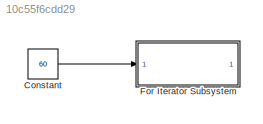
MODEL slx_10c55f6cdd29
KIND model
BLOCK [Constant] Constant
  Value = 60
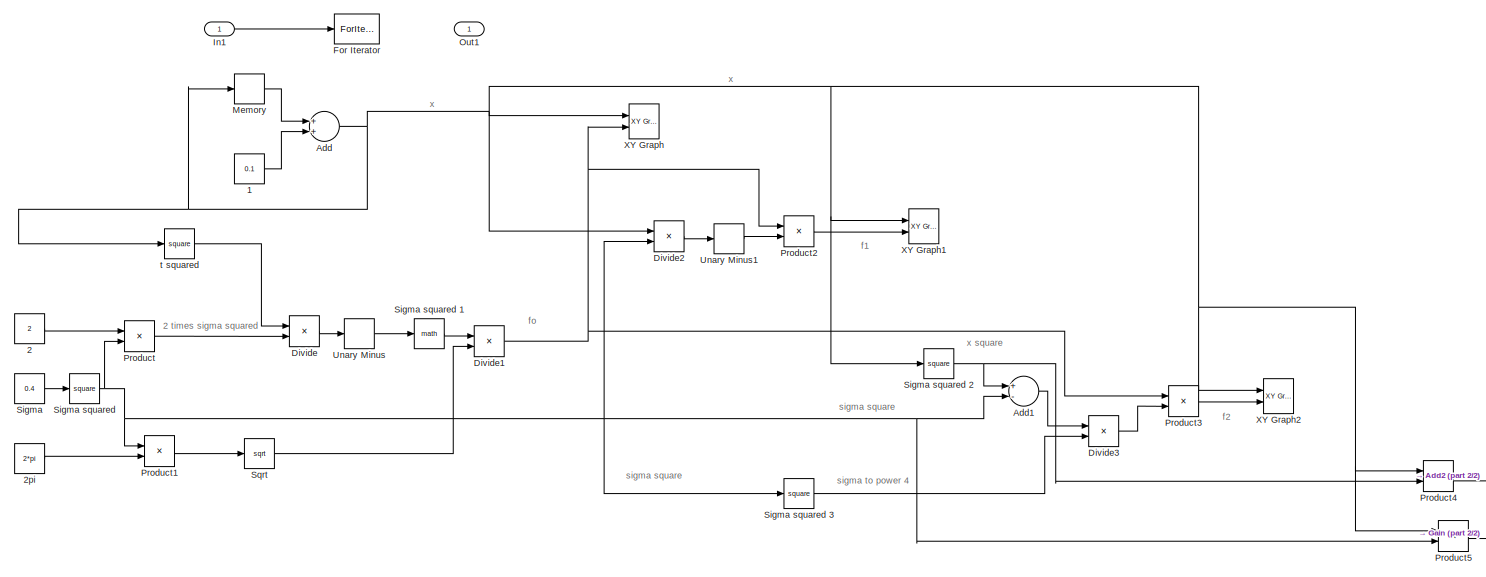
[diagram: For Iterator Subsystem - part 1/2, most of the canvas]
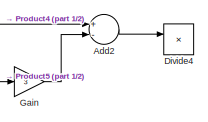
[diagram: For Iterator Subsystem - part 2/2, bottom right region]
BLOCK [SubSystem] For Iterator Subsystem
  FunctionWithSeparateData = off
  MaskHideContents = off
  MinAlgLoopOccurrences = off
  Opaque = off
  Ports = [1, 1]
  PropExecContextOutsideSubsystem = off
  RTWSystemCode = Auto
  RequestExecContextInheritance = off
  TreatAsAtomicUnit = on
BLOCK [Constant] For Iterator Subsystem/1
  Value = 0.1
BLOCK [Constant] For Iterator Subsystem/2
  Value = 2
BLOCK [Constant] For Iterator Subsystem/2pi 
  Value = 2*pi
BLOCK [Sum] For Iterator Subsystem/Add
  InputSameDT = off
  OutDataTypeStr = Inherit: Inherit via internal rule
  Ports = [2, 1]
  SaturateOnIntegerOverflow = off
BLOCK [Sum] For Iterator Subsystem/Add1
  InputSameDT = off
  Inputs = +-
  OutDataTypeStr = Inherit: Inherit via internal rule
  Ports = [2, 1]
  SaturateOnIntegerOverflow = off
BLOCK [Sum] For Iterator Subsystem/Add2
  InputSameDT = off
  Inputs = +-
  OutDataTypeStr = Inherit: Inherit via internal rule
  Ports = [2, 1]
  SaturateOnIntegerOverflow = off
BLOCK [Product] For Iterator Subsystem/Divide
  InputSameDT = off
  Inputs = */
  OutDataTypeStr = Inherit: Inherit via internal rule
  Ports = [2, 1]
  RndMeth = Floor
  SaturateOnIntegerOverflow = off
BLOCK [Product] For Iterator Subsystem/Divide1
  InputSameDT = off
  Inputs = */
  OutDataTypeStr = Inherit: Inherit via internal rule
  Ports = [2, 1]
  RndMeth = Floor
  SaturateOnIntegerOverflow = off
BLOCK [Product] For Iterator Subsystem/Divide2
  InputSameDT = off
  Inputs = */
  OutDataTypeStr = Inherit: Inherit via internal rule
  Ports = [2, 1]
  RndMeth = Floor
  SaturateOnIntegerOverflow = off
BLOCK [Product] For Iterator Subsystem/Divide3
  InputSameDT = off
  Inputs = */
  OutDataTypeStr = Inherit: Inherit via internal rule
  Ports = [2, 1]
  RndMeth = Floor
  SaturateOnIntegerOverflow = off
BLOCK [Product] For Iterator Subsystem/Divide4
  InputSameDT = off
  Inputs = */
  OutDataTypeStr = Inherit: Inherit via internal rule
  Ports = [2, 1]
  RndMeth = Floor
  SaturateOnIntegerOverflow = off
BLOCK [ForIterator] For Iterator Subsystem/For Iterator
  IterationSource = external
  Ports = [1, 1]
  ResetStates = reset
BLOCK [Gain] For Iterator Subsystem/Gain
  Gain = 3
  OutDataTypeStr = Inherit: Inherit via internal rule
  ParamDataTypeStr = Inherit: Inherit via internal rule
  SaturateOnIntegerOverflow = off
BLOCK [Inport] For Iterator Subsystem/In1
  IconDisplay = Port number
BLOCK [Memory] For Iterator Subsystem/Memory
  InheritSampleTime = on
  X0 = -3.1
BLOCK [Outport] For Iterator Subsystem/Out1
  IconDisplay = Port number
BLOCK [Product] For Iterator Subsystem/Product
  InputSameDT = off
  OutDataTypeStr = Inherit: Inherit via internal rule
  Ports = [2, 1]
  SaturateOnIntegerOverflow = off
BLOCK [Product] For Iterator Subsystem/Product1
  InputSameDT = off
  OutDataTypeStr = Inherit: Inherit via internal rule
  Ports = [2, 1]
  SaturateOnIntegerOverflow = off
BLOCK [Product] For Iterator Subsystem/Product2
  InputSameDT = off
  OutDataTypeStr = Inherit: Inherit via internal rule
  Ports = [2, 1]
  SaturateOnIntegerOverflow = off
BLOCK [Product] For Iterator Subsystem/Product3
  InputSameDT = off
  OutDataTypeStr = Inherit: Inherit via internal rule
  Ports = [2, 1]
  SaturateOnIntegerOverflow = off
BLOCK [Product] For Iterator Subsystem/Product4
  InputSameDT = off
  OutDataTypeStr = Inherit: Inherit via internal rule
  Ports = [2, 1]
  SaturateOnIntegerOverflow = off
BLOCK [Product] For Iterator Subsystem/Product5
  InputSameDT = off
  OutDataTypeStr = Inherit: Inherit via internal rule
  Ports = [2, 1]
  SaturateOnIntegerOverflow = off
BLOCK [Constant] For Iterator Subsystem/Sigma 
  Value = 0.4
BLOCK [Math] For Iterator Subsystem/Sigma squared 
  Operator = square
  Ports = [1, 1]
BLOCK [Math] For Iterator Subsystem/Sigma squared 1
  Ports = [1, 1]
BLOCK [Math] For Iterator Subsystem/Sigma squared 2
  Operator = square
  Ports = [1, 1]
BLOCK [Math] For Iterator Subsystem/Sigma squared 3
  Operator = square
  Ports = [1, 1]
BLOCK [Sqrt] For Iterator Subsystem/Sqrt
BLOCK [UnaryMinus] For Iterator Subsystem/Unary Minus
BLOCK [UnaryMinus] For Iterator Subsystem/Unary Minus1
BLOCK [Reference] For Iterator Subsystem/XY Graph  REF=simulink/Sinks/XY Graph
  Ports = [2]
  SourceBlock = simulink/Sinks/XY Graph
  SourceType = XY scope.
  st = -1
  xmax = 3
  xmin = -3
  ymax = 1
  ymin = 0
BLOCK [Reference] For Iterator Subsystem/XY Graph1  REF=simulink/Sinks/XY Graph
  Ports = [2]
  SourceBlock = simulink/Sinks/XY Graph
  SourceType = XY scope.
  st = -1
  xmax = 3
  xmin = -3
  ymax = 1.6
  ymin = -1.6
BLOCK [Reference] For Iterator Subsystem/XY Graph2  REF=simulink/Sinks/XY Graph
  Ports = [2]
  SourceBlock = simulink/Sinks/XY Graph
  SourceType = XY scope.
  st = -1
  xmax = 3
  xmin = -3
  ymax = 3
  ymin = -6.5
BLOCK [Math] For Iterator Subsystem/t squared 
  Operator = square
  Ports = [1, 1]
ANNOTATION For Iterator Subsystem: 2 times sigma squared
ANNOTATION For Iterator Subsystem: f1
ANNOTATION For Iterator Subsystem: f2
ANNOTATION For Iterator Subsystem: fo
ANNOTATION For Iterator Subsystem: sigma square
ANNOTATION For Iterator Subsystem: sigma to power 4
ANNOTATION For Iterator Subsystem: x
ANNOTATION For Iterator Subsystem: x square
LINE Constant:1 -> For Iterator Subsystem:1
LINE For Iterator Subsystem/1:1 -> For Iterator Subsystem/Add:2
LINE For Iterator Subsystem/2:1 -> For Iterator Subsystem/Product:1
LINE For Iterator Subsystem/2pi :1 -> For Iterator Subsystem/Product1:2
LINE For Iterator Subsystem/Add1:1 -> For Iterator Subsystem/Divide3:1
LINE For Iterator Subsystem/Add2:1 -> For Iterator Subsystem/Divide4:1
NET For Iterator Subsystem/Add:1 -> For Iterator Subsystem/Divide2:1, For Iterator Subsystem/Memory:1, For Iterator Subsystem/Product4:1, For Iterator Subsystem/Product5:1, For Iterator Subsystem/Sigma squared 2:1, For Iterator Subsystem/XY Graph1:1, For Iterator Subsystem/XY Graph2:1, For Iterator Subsystem/XY Graph:1, For Iterator Subsystem/t squared :1
NET For Iterator Subsystem/Divide1:1 -> For Iterator Subsystem/Product2:1, For Iterator Subsystem/Product3:1, For Iterator Subsystem/XY Graph:2
LINE For Iterator Subsystem/Divide2:1 -> For Iterator Subsystem/Unary Minus1:1
LINE For Iterator Subsystem/Divide3:1 -> For Iterator Subsystem/Product3:2
LINE For Iterator Subsystem/Divide:1 -> For Iterator Subsystem/Unary Minus:1
LINE For Iterator Subsystem/Gain:1 -> For Iterator Subsystem/Add2:2
LINE For Iterator Subsystem/In1:1 -> For Iterator Subsystem/For Iterator:1
LINE For Iterator Subsystem/Memory:1 -> For Iterator Subsystem/Add:1
LINE For Iterator Subsystem/Product1:1 -> For Iterator Subsystem/Sqrt:1
LINE For Iterator Subsystem/Product2:1 -> For Iterator Subsystem/XY Graph1:2
LINE For Iterator Subsystem/Product3:1 -> For Iterator Subsystem/XY Graph2:2
LINE For Iterator Subsystem/Product4:1 -> For Iterator Subsystem/Add2:1
LINE For Iterator Subsystem/Product5:1 -> For Iterator Subsystem/Gain:1
LINE For Iterator Subsystem/Product:1 -> For Iterator Subsystem/Divide:2
LINE For Iterator Subsystem/Sigma :1 -> For Iterator Subsystem/Sigma squared :1
LINE For Iterator Subsystem/Sigma squared 1:1 -> For Iterator Subsystem/Divide1:1
NET For Iterator Subsystem/Sigma squared 2:1 -> For Iterator Subsystem/Add1:1, For Iterator Subsystem/Product4:2
LINE For Iterator Subsystem/Sigma squared 3:1 -> For Iterator Subsystem/Divide3:2
NET For Iterator Subsystem/Sigma squared :1 -> For Iterator Subsystem/Add1:2, For Iterator Subsystem/Divide2:2, For Iterator Subsystem/Product1:1, For Iterator Subsystem/Product5:2, For Iterator Subsystem/Product:2, For Iterator Subsystem/Sigma squared 3:1
LINE For Iterator Subsystem/Sqrt:1 -> For Iterator Subsystem/Divide1:2
LINE For Iterator Subsystem/Unary Minus1:1 -> For Iterator Subsystem/Product2:2
LINE For Iterator Subsystem/Unary Minus:1 -> For Iterator Subsystem/Sigma squared 1:1
LINE For Iterator Subsystem/t squared :1 -> For Iterator Subsystem/Divide:1
note: NET lines group one-source signal fan-out (src -> all destinations, sorted); 1:1 wires keep LINE
